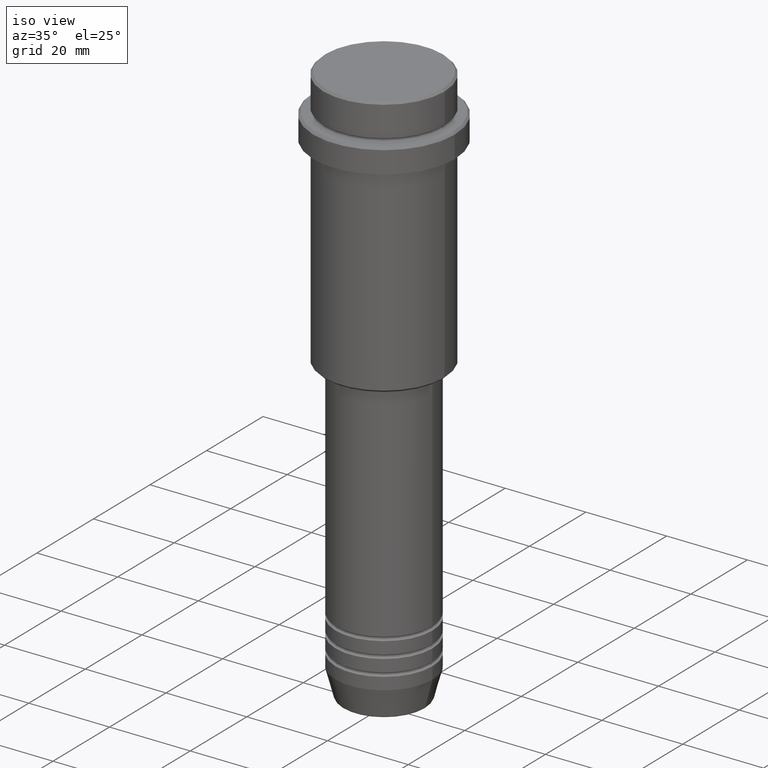
[diagram: clean part render]
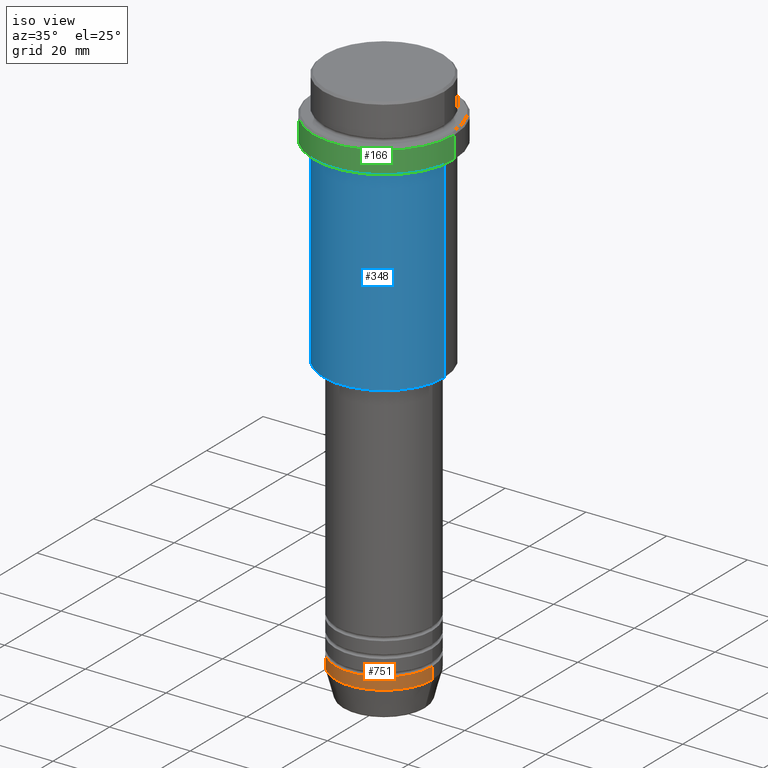
[diagram: same view with three faces highlighted in distinct colors, each labeled with its STEP entity id]
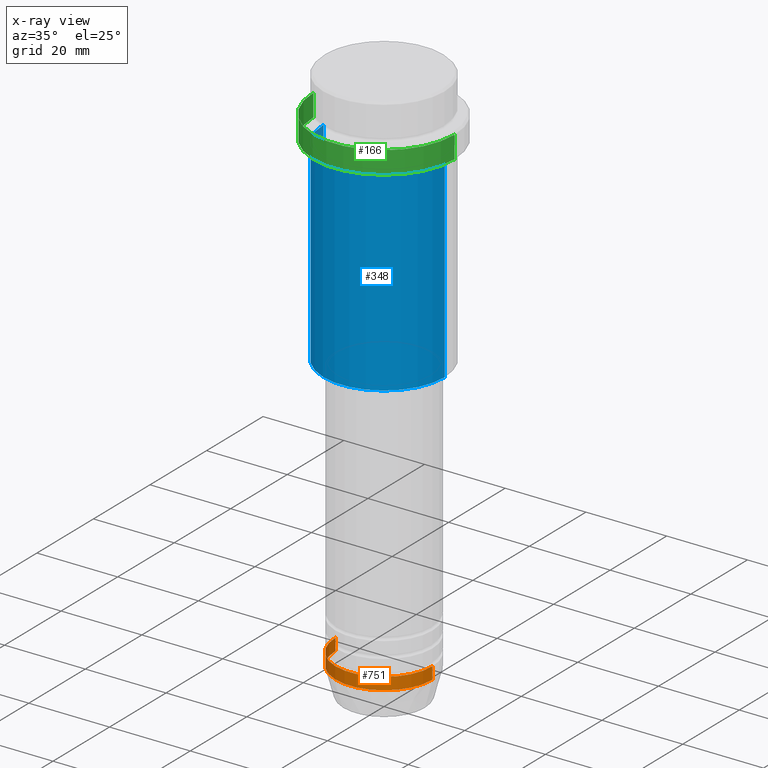
[diagram: x-ray of the same camera — body ghosted, the three highlighted faces saturated]
A machine part, iso view with three faces highlighted in distinct colors.
The next image is the same camera in x-ray (body ghosted, the three faces saturated) — at least one of them is partly hidden behind the body in this view.
Their STEP definitions:

[orange] entity #751 — the highlighted cylindrical surface (partial cylindrical patch) has radius 12 mm, axis along (-0, -0, 1).
#7 = VECTOR ( 'NONE', #342, 1000.000000000000000 ) ;
#16 = ORIENTED_EDGE ( 'NONE', *, *, #1191, .T. ) ;
#101 = ORIENTED_EDGE ( 'NONE', *, *, #1382, .T. ) ;
#125 = DIRECTION ( 'NONE',  ( -0.000000000000000000, -0.000000000000000000, 1.000000000000000000 ) ) ;
#137 = DIRECTION ( 'NONE',  ( 1.000000000000000000, 0.000000000000000000, 0.000000000000000000 ) ) ;
#176 = CARTESIAN_POINT ( 'NONE',  ( -12.00000000000000000, 1.469576158976823947E-15, -130.0000000000000000 ) ) ;
#180 = ORIENTED_EDGE ( 'NONE', *, *, #1273, .F. ) ;
#228 = CARTESIAN_POINT ( 'NONE',  ( -12.00000000000000000, 1.469576158976823947E-15, 0.000000000000000000 ) ) ;
#232 = LINE ( 'NONE', #1121, #544 ) ;
#238 = CARTESIAN_POINT ( 'NONE',  ( 12.00000000000000000, 0.000000000000000000, -133.0000000000000000 ) ) ;
#258 = CIRCLE ( 'NONE', #1221, 12.00000000000000000 ) ;
#299 = AXIS2_PLACEMENT_3D ( 'NONE', #691, #125, #137 ) ;
#342 = DIRECTION ( 'NONE',  ( -0.000000000000000000, -0.000000000000000000, 1.000000000000000000 ) ) ;
#354 = CYLINDRICAL_SURFACE ( 'NONE', #299, 12.00000000000000000 ) ;
#519 = VERTEX_POINT ( 'NONE', #1416 ) ;
#544 = VECTOR ( 'NONE', #670, 1000.000000000000000 ) ;
#670 = DIRECTION ( 'NONE',  ( -0.000000000000000000, -0.000000000000000000, 1.000000000000000000 ) ) ;
#691 = CARTESIAN_POINT ( 'NONE',  ( 0.000000000000000000, 0.000000000000000000, 0.000000000000000000 ) ) ;
#712 = AXIS2_PLACEMENT_3D ( 'NONE', #937, #1378, #922 ) ;
#751 = ADVANCED_FACE ( 'NONE', ( #906 ), #354, .T. ) ;
#798 = DIRECTION ( 'NONE',  ( -0.000000000000000000, -0.000000000000000000, 1.000000000000000000 ) ) ;
#816 = VERTEX_POINT ( 'NONE', #176 ) ;
#906 = FACE_OUTER_BOUND ( 'NONE', #1387, .T. ) ;
#922 = DIRECTION ( 'NONE',  ( 1.000000000000000000, 0.000000000000000000, 0.000000000000000000 ) ) ;
#937 = CARTESIAN_POINT ( 'NONE',  ( 0.000000000000000000, 0.000000000000000000, -133.0000000000000000 ) ) ;
#952 = VERTEX_POINT ( 'NONE', #1274 ) ;
#1028 = CARTESIAN_POINT ( 'NONE',  ( 0.000000000000000000, 0.000000000000000000, -130.0000000000000000 ) ) ;
#1097 = LINE ( 'NONE', #228, #7 ) ;
#1121 = CARTESIAN_POINT ( 'NONE',  ( 12.00000000000000000, 0.000000000000000000, 0.000000000000000000 ) ) ;
#1127 = EDGE_CURVE ( 'NONE', #519, #816, #1097, .T. ) ;
#1162 = VERTEX_POINT ( 'NONE', #238 ) ;
#1191 = EDGE_CURVE ( 'NONE', #1162, #952, #232, .T. ) ;
#1221 = AXIS2_PLACEMENT_3D ( 'NONE', #1028, #798, #1249 ) ;
#1249 = DIRECTION ( 'NONE',  ( 1.000000000000000000, 0.000000000000000000, 0.000000000000000000 ) ) ;
#1273 = EDGE_CURVE ( 'NONE', #816, #952, #258, .T. ) ;
#1274 = CARTESIAN_POINT ( 'NONE',  ( 12.00000000000000000, 0.000000000000000000, -130.0000000000000000 ) ) ;
#1336 = CIRCLE ( 'NONE', #712, 12.00000000000000000 ) ;
#1341 = ORIENTED_EDGE ( 'NONE', *, *, #1127, .F. ) ;
#1378 = DIRECTION ( 'NONE',  ( -0.000000000000000000, -0.000000000000000000, 1.000000000000000000 ) ) ;
#1382 = EDGE_CURVE ( 'NONE', #519, #1162, #1336, .T. ) ;
#1387 = EDGE_LOOP ( 'NONE', ( #1341, #101, #16, #180 ) ) ;
#1416 = CARTESIAN_POINT ( 'NONE',  ( -12.00000000000000000, 1.469576158976823947E-15, -133.0000000000000000 ) ) ;

[blue] entity #348 — the highlighted cylindrical surface (partial cylindrical patch) has radius 15 mm, axis along (-0, -0, 1).
#14 = DIRECTION ( 'NONE',  ( -0.000000000000000000, -0.000000000000000000, 1.000000000000000000 ) ) ;
#42 = DIRECTION ( 'NONE',  ( -0.000000000000000000, -0.000000000000000000, 1.000000000000000000 ) ) ;
#136 = DIRECTION ( 'NONE',  ( -0.000000000000000000, -0.000000000000000000, 1.000000000000000000 ) ) ;
#231 = DIRECTION ( 'NONE',  ( 1.000000000000000000, 0.000000000000000000, 0.000000000000000000 ) ) ;
#233 = CIRCLE ( 'NONE', #1376, 15.00000000000000000 ) ;
#234 = VECTOR ( 'NONE', #496, 1000.000000000000000 ) ;
#272 = VERTEX_POINT ( 'NONE', #579 ) ;
#348 = ADVANCED_FACE ( 'NONE', ( #1111 ), #1210, .T. ) ;
#378 = CARTESIAN_POINT ( 'NONE',  ( 0.000000000000000000, 0.000000000000000000, -64.50000000000001421 ) ) ;
#496 = DIRECTION ( 'NONE',  ( -0.000000000000000000, -0.000000000000000000, 1.000000000000000000 ) ) ;
#514 = CARTESIAN_POINT ( 'NONE',  ( 15.00000000000000000, 0.000000000000000000, -64.50000000000001421 ) ) ;
#579 = CARTESIAN_POINT ( 'NONE',  ( -15.00000000000000355, 1.836970198721029983E-15, -16.00000000000000000 ) ) ;
#763 = CARTESIAN_POINT ( 'NONE',  ( -15.00000000000000000, 1.836970198721029589E-15, -64.50000000000001421 ) ) ;
#789 = CARTESIAN_POINT ( 'NONE',  ( 15.00000000000000000, 0.000000000000000000, 0.000000000000000000 ) ) ;
#803 = ORIENTED_EDGE ( 'NONE', *, *, #1206, .F. ) ;
#821 = DIRECTION ( 'NONE',  ( -1.000000000000000000, 0.000000000000000000, 0.000000000000000000 ) ) ;
#898 = ORIENTED_EDGE ( 'NONE', *, *, #1027, .F. ) ;
#907 = EDGE_CURVE ( 'NONE', #936, #1384, #233, .T. ) ;
#923 = VECTOR ( 'NONE', #14, 1000.000000000000000 ) ;
#936 = VERTEX_POINT ( 'NONE', #763 ) ;
#955 = AXIS2_PLACEMENT_3D ( 'NONE', #1238, #1124, #231 ) ;
#987 = CIRCLE ( 'NONE', #1012, 15.00000000000000178 ) ;
#999 = CARTESIAN_POINT ( 'NONE',  ( 15.00000000000000178, 0.000000000000000000, -16.00000000000000000 ) ) ;
#1012 = AXIS2_PLACEMENT_3D ( 'NONE', #1109, #136, #1015 ) ;
#1015 = DIRECTION ( 'NONE',  ( 1.000000000000000000, 0.000000000000000000, 0.000000000000000000 ) ) ;
#1027 = EDGE_CURVE ( 'NONE', #936, #272, #1291, .T. ) ;
#1060 = CARTESIAN_POINT ( 'NONE',  ( -15.00000000000000000, 1.836970198721029589E-15, 0.000000000000000000 ) ) ;
#1109 = CARTESIAN_POINT ( 'NONE',  ( 0.000000000000000000, 0.000000000000000000, -16.00000000000000000 ) ) ;
#1111 = FACE_OUTER_BOUND ( 'NONE', #1255, .T. ) ;
#1124 = DIRECTION ( 'NONE',  ( -0.000000000000000000, -0.000000000000000000, 1.000000000000000000 ) ) ;
#1137 = VERTEX_POINT ( 'NONE', #999 ) ;
#1172 = EDGE_CURVE ( 'NONE', #1384, #1137, #1318, .T. ) ;
#1184 = ORIENTED_EDGE ( 'NONE', *, *, #1172, .T. ) ;
#1206 = EDGE_CURVE ( 'NONE', #272, #1137, #987, .T. ) ;
#1210 = CYLINDRICAL_SURFACE ( 'NONE', #955, 15.00000000000000000 ) ;
#1238 = CARTESIAN_POINT ( 'NONE',  ( 0.000000000000000000, 0.000000000000000000, 0.000000000000000000 ) ) ;
#1255 = EDGE_LOOP ( 'NONE', ( #898, #1345, #1184, #803 ) ) ;
#1291 = LINE ( 'NONE', #1060, #234 ) ;
#1318 = LINE ( 'NONE', #789, #923 ) ;
#1345 = ORIENTED_EDGE ( 'NONE', *, *, #907, .T. ) ;
#1376 = AXIS2_PLACEMENT_3D ( 'NONE', #378, #42, #821 ) ;
#1384 = VERTEX_POINT ( 'NONE', #514 ) ;

[green] entity #166 — the highlighted cylindrical surface (partial cylindrical patch) has radius 17.5 mm, axis along (-0, -0, 1).
#62 = ORIENTED_EDGE ( 'NONE', *, *, #1228, .F. ) ;
#131 = DIRECTION ( 'NONE',  ( 0.000000000000000000, 0.000000000000000000, -1.000000000000000000 ) ) ;
#166 = ADVANCED_FACE ( 'NONE', ( #409 ), #1394, .T. ) ;
#168 = AXIS2_PLACEMENT_3D ( 'NONE', #865, #131, #909 ) ;
#187 = VECTOR ( 'NONE', #464, 1000.000000000000000 ) ;
#217 = AXIS2_PLACEMENT_3D ( 'NONE', #658, #969, #885 ) ;
#248 = VERTEX_POINT ( 'NONE', #665 ) ;
#281 = VECTOR ( 'NONE', #687, 1000.000000000000000 ) ;
#287 = VERTEX_POINT ( 'NONE', #558 ) ;
#293 = VERTEX_POINT ( 'NONE', #674 ) ;
#305 = EDGE_CURVE ( 'NONE', #248, #287, #809, .T. ) ;
#380 = CARTESIAN_POINT ( 'NONE',  ( 17.50000000000000000, 0.000000000000000000, -9.500000000000000000 ) ) ;
#409 = FACE_OUTER_BOUND ( 'NONE', #1224, .T. ) ;
#464 = DIRECTION ( 'NONE',  ( -0.000000000000000000, -0.000000000000000000, 1.000000000000000000 ) ) ;
#535 = CARTESIAN_POINT ( 'NONE',  ( -17.50000000000000000, 2.143131898507868248E-15, 0.000000000000000000 ) ) ;
#558 = CARTESIAN_POINT ( 'NONE',  ( 17.50000000000000000, 0.000000000000000000, -15.00000000000000000 ) ) ;
#658 = CARTESIAN_POINT ( 'NONE',  ( 0.000000000000000000, 0.000000000000000000, 0.000000000000000000 ) ) ;
#665 = CARTESIAN_POINT ( 'NONE',  ( -17.50000000000000000, 2.143131898507868248E-15, -15.00000000000000000 ) ) ;
#674 = CARTESIAN_POINT ( 'NONE',  ( -17.50000000000000000, 2.143131898507868248E-15, -9.500000000000000000 ) ) ;
#687 = DIRECTION ( 'NONE',  ( -0.000000000000000000, -0.000000000000000000, 1.000000000000000000 ) ) ;
#759 = CIRCLE ( 'NONE', #168, 17.50000000000000000 ) ;
#792 = CARTESIAN_POINT ( 'NONE',  ( 0.000000000000000000, 0.000000000000000000, -15.00000000000000000 ) ) ;
#809 = CIRCLE ( 'NONE', #988, 17.50000000000000000 ) ;
#820 = CARTESIAN_POINT ( 'NONE',  ( 17.50000000000000000, 0.000000000000000000, 0.000000000000000000 ) ) ;
#865 = CARTESIAN_POINT ( 'NONE',  ( 0.000000000000000000, 0.000000000000000000, -9.500000000000000000 ) ) ;
#885 = DIRECTION ( 'NONE',  ( 1.000000000000000000, 0.000000000000000000, 0.000000000000000000 ) ) ;
#900 = DIRECTION ( 'NONE',  ( 1.000000000000000000, 0.000000000000000000, 0.000000000000000000 ) ) ;
#909 = DIRECTION ( 'NONE',  ( 1.000000000000000000, 0.000000000000000000, 0.000000000000000000 ) ) ;
#932 = LINE ( 'NONE', #820, #187 ) ;
#969 = DIRECTION ( 'NONE',  ( -0.000000000000000000, -0.000000000000000000, 1.000000000000000000 ) ) ;
#988 = AXIS2_PLACEMENT_3D ( 'NONE', #792, #1227, #900 ) ;
#998 = ORIENTED_EDGE ( 'NONE', *, *, #1258, .T. ) ;
#1087 = EDGE_CURVE ( 'NONE', #1321, #293, #759, .T. ) ;
#1092 = LINE ( 'NONE', #535, #281 ) ;
#1169 = ORIENTED_EDGE ( 'NONE', *, *, #1087, .T. ) ;
#1224 = EDGE_LOOP ( 'NONE', ( #62, #1415, #998, #1169 ) ) ;
#1227 = DIRECTION ( 'NONE',  ( -0.000000000000000000, -0.000000000000000000, 1.000000000000000000 ) ) ;
#1228 = EDGE_CURVE ( 'NONE', #248, #293, #1092, .T. ) ;
#1258 = EDGE_CURVE ( 'NONE', #287, #1321, #932, .T. ) ;
#1321 = VERTEX_POINT ( 'NONE', #380 ) ;
#1394 = CYLINDRICAL_SURFACE ( 'NONE', #217, 17.50000000000000000 ) ;
#1415 = ORIENTED_EDGE ( 'NONE', *, *, #305, .T. ) ;